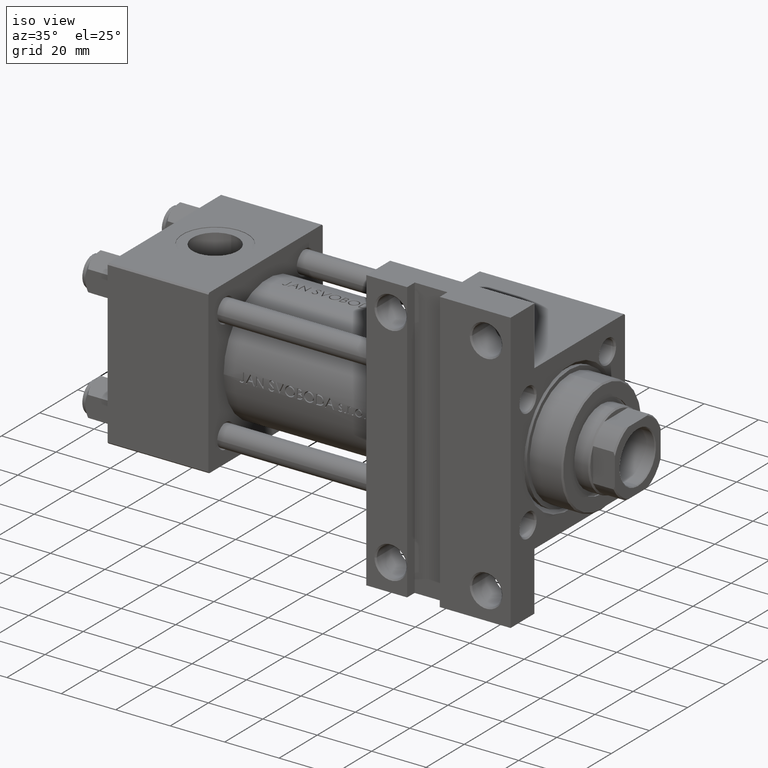
[diagram: clean part render]
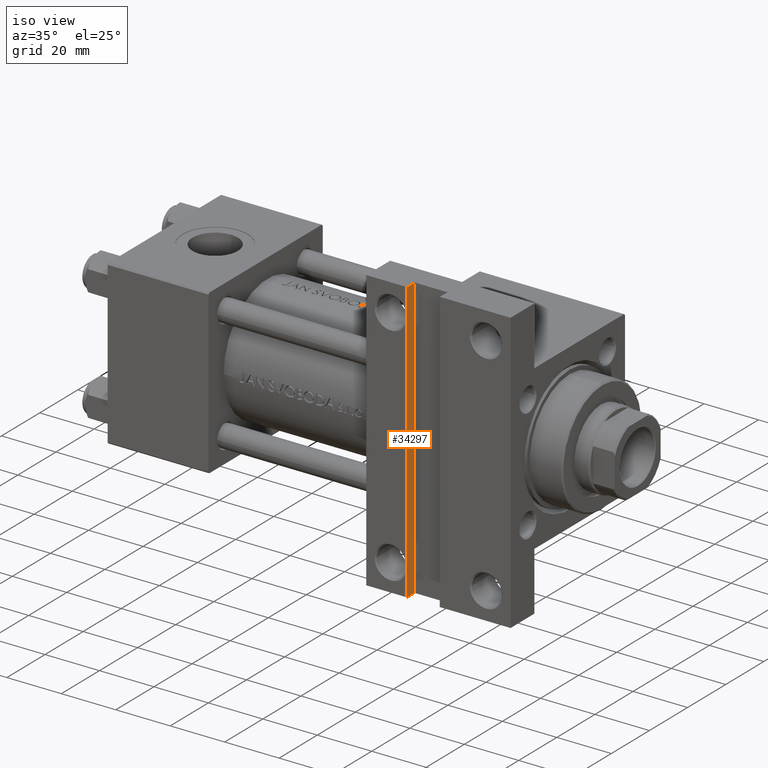
[diagram: same view with one face highlighted and labeled with its STEP entity id]
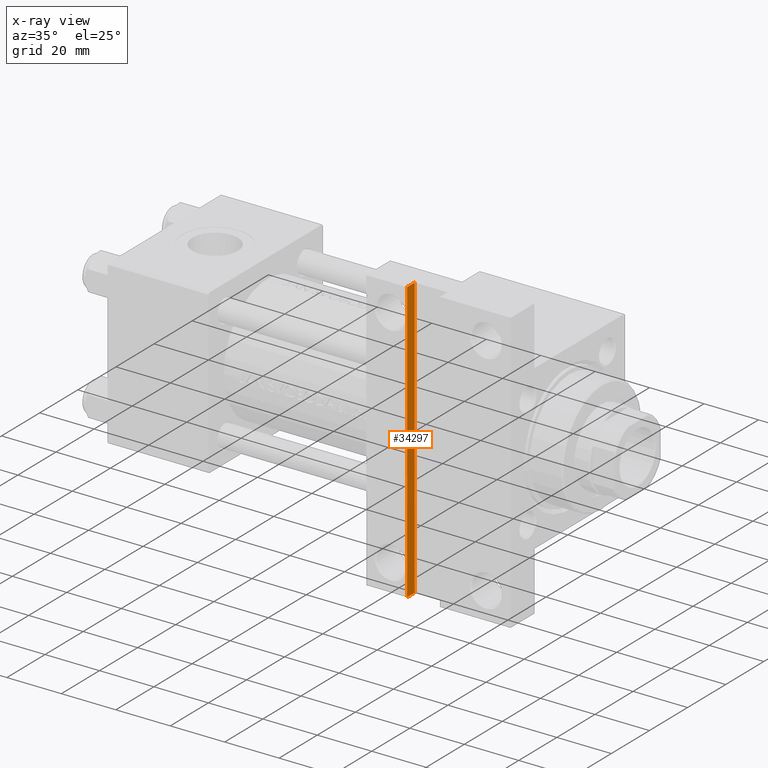
[diagram: x-ray of the same camera — body ghosted, the highlighted face saturated]
A machine part, iso view. The second image highlights one B-rep face of the part: STEP entity #34297.
The next image is the same camera in x-ray: the body ghosted, the highlighted face saturated — about 0% of this face is hidden behind the body in this view.
In plain terms, the highlighted planar face has unit normal (-1, 0, 0).
Its self-contained STEP definition (entity closure, byte-faithful):
#2154 = LINE ( 'NONE', #43317, #28141 ) ;
#2386 = DIRECTION ( 'NONE',  ( 0.000000000000000000, 0.000000000000000000, 1.000000000000000000 ) ) ;
#3026 = CARTESIAN_POINT ( 'NONE',  ( 109.9999999999999858, 51.50000000000000711, -25.99999999999999645 ) ) ;
#3105 = PLANE ( 'NONE',  #42086 ) ;
#4221 = CARTESIAN_POINT ( 'NONE',  ( 109.9999999999999858, -51.49999999999999289, -29.99999999999999645 ) ) ;
#5080 = EDGE_CURVE ( 'NONE', #37037, #10382, #2154, .T. ) ;
#5428 = VECTOR ( 'NONE', #23743, 1000.000000000000000 ) ;
#5518 = CARTESIAN_POINT ( 'NONE',  ( 109.9999999999999858, -51.49999999999999289, -29.99999999999999645 ) ) ;
#5754 = EDGE_CURVE ( 'NONE', #37037, #47398, #30817, .T. ) ;
#6238 = DIRECTION ( 'NONE',  ( -0.000000000000000000, -0.000000000000000000, -1.000000000000000000 ) ) ;
#6555 = CARTESIAN_POINT ( 'NONE',  ( 109.9999999999999858, -51.49999999999999289, -25.99999999999999645 ) ) ;
#10382 = VERTEX_POINT ( 'NONE', #30026 ) ;
#13013 = ORIENTED_EDGE ( 'NONE', *, *, #5754, .T. ) ;
#13486 = DIRECTION ( 'NONE',  ( 0.000000000000000000, 1.000000000000000000, 0.000000000000000000 ) ) ;
#13790 = CARTESIAN_POINT ( 'NONE',  ( 109.9999999999999858, -51.49999999999999289, -25.99999999999999645 ) ) ;
#16765 = EDGE_CURVE ( 'NONE', #47398, #27478, #28425, .T. ) ;
#16872 = EDGE_CURVE ( 'NONE', #10382, #27478, #33322, .T. ) ;
#18981 = ORIENTED_EDGE ( 'NONE', *, *, #5080, .F. ) ;
#23743 = DIRECTION ( 'NONE',  ( 0.000000000000000000, 1.000000000000000000, 0.000000000000000000 ) ) ;
#27478 = VERTEX_POINT ( 'NONE', #36209 ) ;
#28141 = VECTOR ( 'NONE', #13486, 1000.000000000000000 ) ;
#28425 = LINE ( 'NONE', #5518, #5428 ) ;
#30026 = CARTESIAN_POINT ( 'NONE',  ( 109.9999999999999858, 51.50000000000000711, -25.99999999999999645 ) ) ;
#30817 = LINE ( 'NONE', #13790, #47855 ) ;
#31557 = DIRECTION ( 'NONE',  ( -0.000000000000000000, -0.000000000000000000, -1.000000000000000000 ) ) ;
#32196 = DIRECTION ( 'NONE',  ( -1.000000000000000000, 0.000000000000000000, 0.000000000000000000 ) ) ;
#32376 = CARTESIAN_POINT ( 'NONE',  ( 109.9999999999999858, -51.49999999999999289, -25.99999999999999645 ) ) ;
#33322 = LINE ( 'NONE', #3026, #47122 ) ;
#34297 = ADVANCED_FACE ( 'NONE', ( #45771 ), #3105, .F. ) ;
#36209 = CARTESIAN_POINT ( 'NONE',  ( 109.9999999999999858, 51.50000000000000711, -29.99999999999999645 ) ) ;
#37037 = VERTEX_POINT ( 'NONE', #32376 ) ;
#39820 = EDGE_LOOP ( 'NONE', ( #47473, #41381, #18981, #13013 ) ) ;
#41381 = ORIENTED_EDGE ( 'NONE', *, *, #16872, .F. ) ;
#42086 = AXIS2_PLACEMENT_3D ( 'NONE', #6555, #32196, #2386 ) ;
#43317 = CARTESIAN_POINT ( 'NONE',  ( 109.9999999999999858, -51.49999999999999289, -25.99999999999999645 ) ) ;
#45771 = FACE_OUTER_BOUND ( 'NONE', #39820, .T. ) ;
#47122 = VECTOR ( 'NONE', #6238, 1000.000000000000000 ) ;
#47398 = VERTEX_POINT ( 'NONE', #4221 ) ;
#47473 = ORIENTED_EDGE ( 'NONE', *, *, #16765, .T. ) ;
#47855 = VECTOR ( 'NONE', #31557, 1000.000000000000000 ) ;